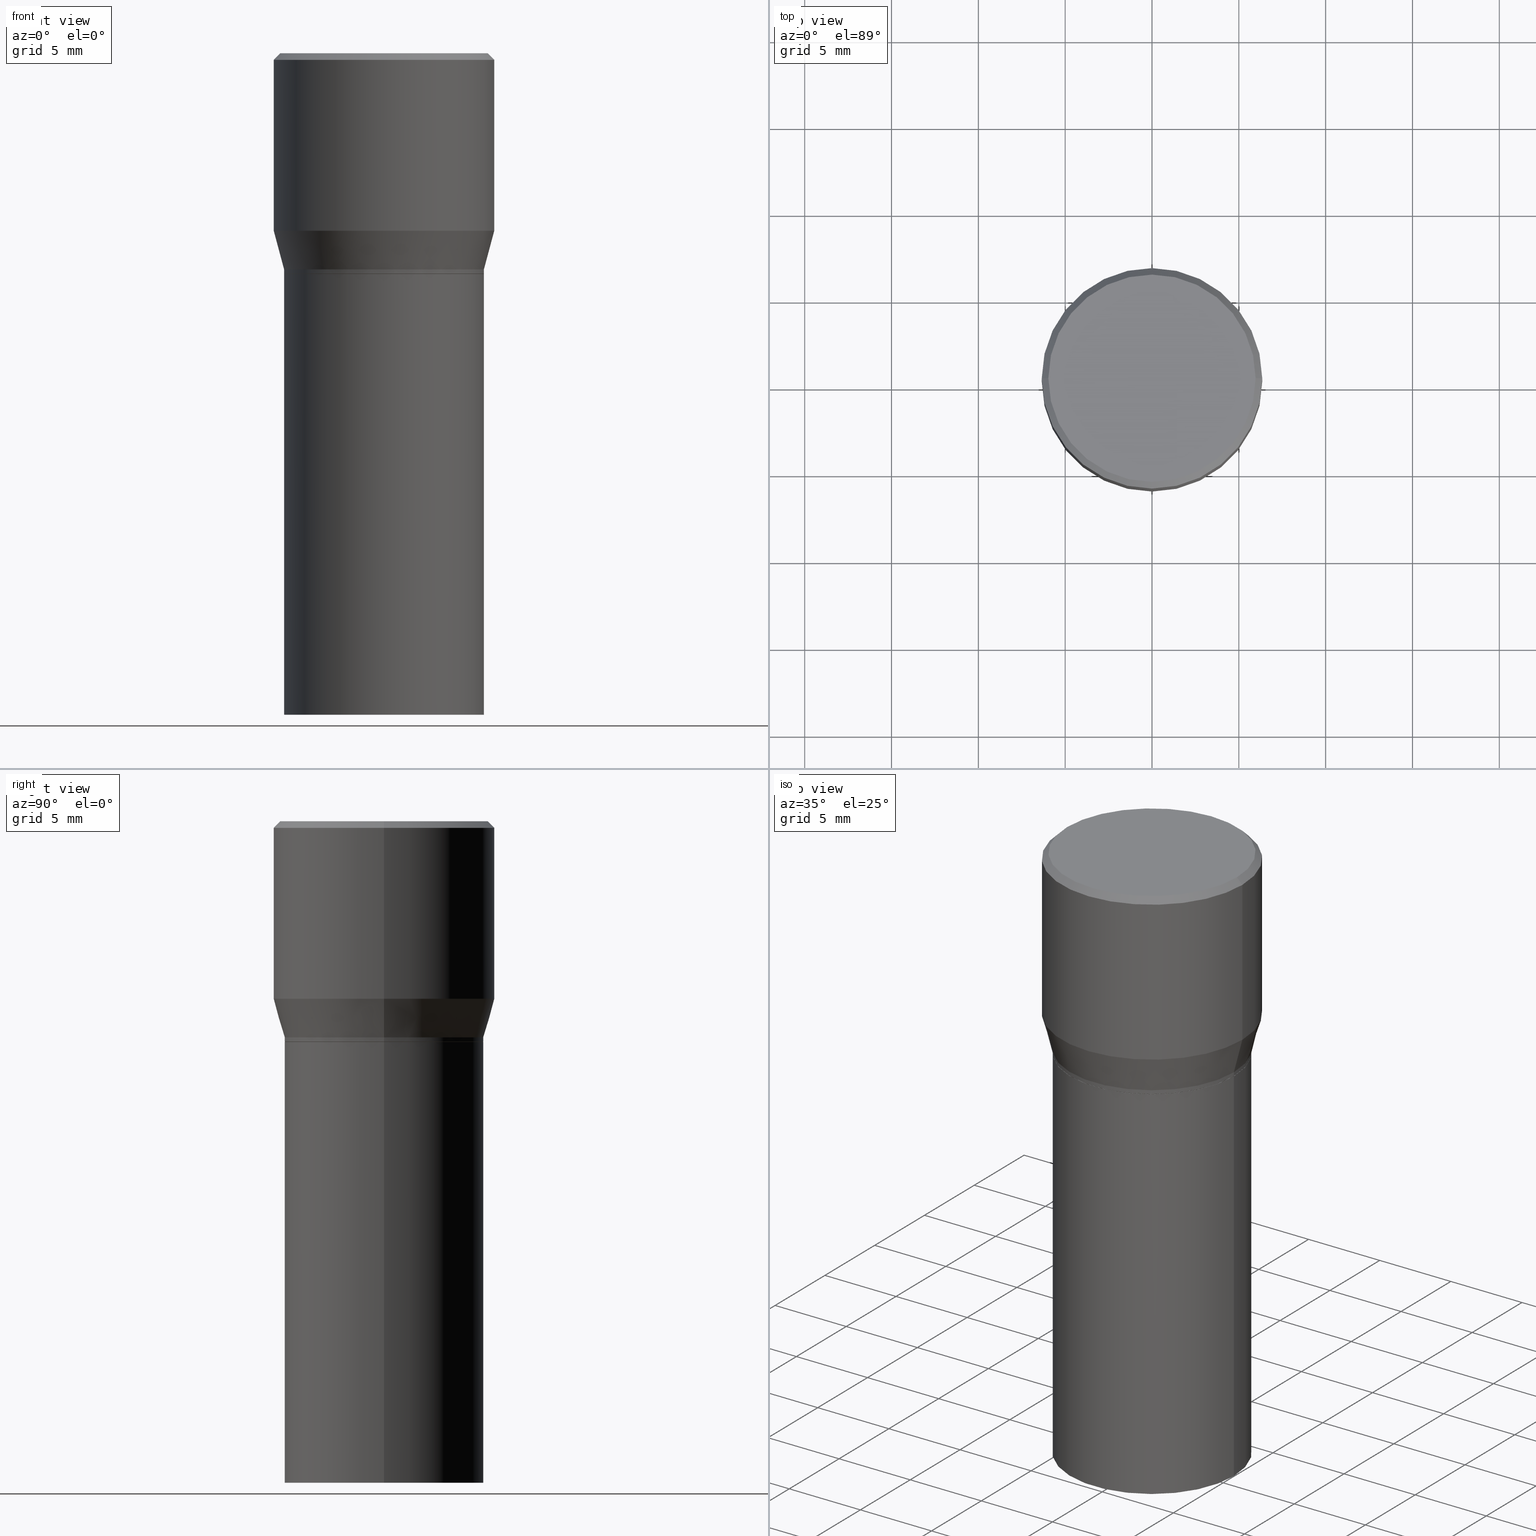
[diagram: canonical four-view strip — front | top / right | iso, engineering-drawing reading convention]
A machine part, canonical four-view strip (front | top / right | iso — engineering-drawing reading convention). The complete STEP part file that produces these views, byte-faithful:
ISO-10303-21;
HEADER;
FILE_DESCRIPTION (( 'STEP AP203' ),
    '1' );
FILE_NAME ('39357.STEP',
    '2024-03-12T19:00:09',
    ( '' ),
    ( '' ),
    'SwSTEP 2.0',
    'SolidWorks 2023',
    '' );
FILE_SCHEMA (( 'CONFIG_CONTROL_DESIGN' ));
ENDSEC;

DATA;
#1 = APPROVAL_STATUS ( 'not_yet_approved' ) ;
#2 = DIRECTION ( 'NONE',  ( 1.000000000000000000, -6.982962677686267499E-15, 0.000000000000000000 ) ) ;
#3 = PERSON_AND_ORGANIZATION ( #396, #66 ) ;
#4 = DIRECTION ( 'NONE',  ( 1.000000000000000000, -6.982962677686265922E-15, 0.000000000000000000 ) ) ;
#5 = DATE_AND_TIME ( #39, #33 ) ;
#6 = CARTESIAN_POINT ( 'NONE',  ( 0.2265499999999999736, -3.292816050662964671E-15, -0.4900000000000001021 ) ) ;
#7 = AXIS2_PLACEMENT_3D ( 'NONE', #284, #421, #102 ) ;
#8 = DIRECTION ( 'NONE',  ( -1.000000000000000000, 6.982962677686266711E-15, 0.000000000000000000 ) ) ;
#9 =( CONVERSION_BASED_UNIT ( 'INCH', #49 ) LENGTH_UNIT ( ) NAMED_UNIT ( #433 ) );
#10 = EDGE_CURVE ( 'NONE', #289, #258, #319, .T. ) ;
#11 = VECTOR ( 'NONE', #170, 39.37007874015747433 ) ;
#12 = CARTESIAN_POINT ( 'NONE',  ( -0.2260500000000000009, -1.395588152358667583E-16, -0.5000000000000001110 ) ) ;
#13 = DIRECTION ( 'NONE',  ( 1.000000000000000000, -6.982962677686267499E-15, 4.878549297894958458E-29 ) ) ;
#14 = DIRECTION ( 'NONE',  ( 1.000000000000000000, -6.982962677686266711E-15, 4.876176775795935793E-29 ) ) ;
#15 = CIRCLE ( 'NONE', #117, 0.2500000000000000000 ) ;
#16 = CIRCLE ( 'NONE', #440, 0.2500000000000000000 ) ;
#17 = VERTEX_POINT ( 'NONE', #249 ) ;
#18 = ORIENTED_EDGE ( 'NONE', *, *, #211, .T. ) ;
#19 = ORIENTED_EDGE ( 'NONE', *, *, #20, .F. ) ;
#20 = EDGE_CURVE ( 'NONE', #241, #196, #144, .T. ) ;
#21 = FACE_OUTER_BOUND ( 'NONE', #456, .T. ) ;
#22 = CARTESIAN_POINT ( 'NONE',  ( -0.2349999999999999867, 1.667182339297596256E-15, 1.568636843340762393E-16 ) ) ;
#23 = EDGE_CURVE ( 'NONE', #241, #252, #137, .T. ) ;
#24 = CIRCLE ( 'NONE', #287, 0.2265500000000000014 ) ;
#25 = PRODUCT_DEFINITION_FORMATION_WITH_SPECIFIED_SOURCE ( 'ANY', '', #232, .NOT_KNOWN. ) ;
#26 = ORIENTED_EDGE ( 'NONE', *, *, #89, .T. ) ;
#27 = DIRECTION ( 'NONE',  ( -2.445468806185136597E-29, 3.491481338843145583E-15, 1.000000000000000000 ) ) ;
#28 = ORIENTED_EDGE ( 'NONE', *, *, #76, .F. ) ;
#29 = PLANE ( 'NONE',  #139 ) ;
#30 = VERTEX_POINT ( 'NONE', #360 ) ;
#31 = DIRECTION ( 'NONE',  ( -2.445468806185136597E-29, 3.491481338843145583E-15, 1.000000000000000000 ) ) ;
#32 = AXIS2_PLACEMENT_3D ( 'NONE', #376, #304, #14 ) ;
#33 = LOCAL_TIME ( 15, 0, 9.000000000000000000, #181 ) ;
#34 = CARTESIAN_POINT ( 'NONE',  ( 9.842606206466859638E-30, -1.405263310189985589E-15, -0.4024834085625100810 ) ) ;
#35 = CARTESIAN_POINT ( 'NONE',  ( 3.668203209277704895E-29, -5.237222008264718177E-15, -1.500000000000000222 ) ) ;
#36 = ADVANCED_FACE ( 'NONE', ( #286 ), #337, .T. ) ;
#37 = CARTESIAN_POINT ( 'NONE',  ( -0.2500000000000000000, 1.693368449338919401E-15, -0.01499999999999999944 ) ) ;
#38 = AXIS2_PLACEMENT_3D ( 'NONE', #322, #57, #461 ) ;
#39 = CALENDAR_DATE ( 2024, 12, 3 ) ;
#40 = CARTESIAN_POINT ( 'NONE',  ( 0.2265500000000000014, -3.325985123381975211E-15, -0.4995000000000001661 ) ) ;
#41 = AXIS2_PLACEMENT_3D ( 'NONE', #167, #318, #8 ) ;
#42 = LINE ( 'NONE', #114, #307 ) ;
#43 = CARTESIAN_POINT ( 'NONE',  ( 9.842606206466859638E-30, -1.405263310189985589E-15, -0.4024834085625100810 ) ) ;
#44 = CIRCLE ( 'NONE', #38, 0.2265500000000000014 ) ;
#45 = DIRECTION ( 'NONE',  ( -2.438088387897960049E-29, 3.491481338843145188E-15, 1.000000000000000000 ) ) ;
#46 = EDGE_CURVE ( 'NONE', #30, #136, #16, .T. ) ;
#47 = CARTESIAN_POINT ( 'NONE',  ( 3.668203209277705088E-31, -5.237222008264718399E-17, -0.01499999999999999944 ) ) ;
#48 = ADVANCED_FACE ( 'NONE', ( #56 ), #302, .T. ) ;
#49 = LENGTH_MEASURE_WITH_UNIT ( LENGTH_MEASURE( 0.02539999999999999897 ), #82 );
#50 = VECTOR ( 'NONE', #347, 39.37007874015748143 ) ;
#51 = ORIENTED_EDGE ( 'NONE', *, *, #46, .T. ) ;
#52 = PERSON_AND_ORGANIZATION_ROLE ( 'classification_officer' ) ;
#53 = EDGE_LOOP ( 'NONE', ( #202, #350, #100, #93 ) ) ;
#54 = ORIENTED_EDGE ( 'NONE', *, *, #23, .F. ) ;
#55 = DATE_TIME_ROLE ( 'classification_date' ) ;
#56 = FACE_OUTER_BOUND ( 'NONE', #316, .T. ) ;
#57 = DIRECTION ( 'NONE',  ( -2.445468806185136597E-29, 3.491481338843145583E-15, 1.000000000000000000 ) ) ;
#58 = ADVANCED_FACE ( 'NONE', ( #21 ), #283, .T. ) ;
#59 = COORDINATED_UNIVERSAL_TIME_OFFSET ( 5, 0, .BEHIND. ) ;
#60 = VERTEX_POINT ( 'NONE', #22 ) ;
#61 = FACE_OUTER_BOUND ( 'NONE', #131, .T. ) ;
#62 = EDGE_LOOP ( 'NONE', ( #383, #160, #19, #68 ) ) ;
#63 = VECTOR ( 'NONE', #342, 39.37007874015748854 ) ;
#64 = EDGE_LOOP ( 'NONE', ( #349, #98 ) ) ;
#65 = CYLINDRICAL_SURFACE ( 'NONE', #254, 0.2500000000000000000 ) ;
#66 = ORGANIZATION ( 'UNSPECIFIED', 'UNSPECIFIED', '' ) ;
#67 = ADVANCED_FACE ( 'NONE', ( #278 ), #158, .T. ) ;
#68 = ORIENTED_EDGE ( 'NONE', *, *, #129, .F. ) ;
#69 = CARTESIAN_POINT ( 'NONE',  ( 3.668203209277705088E-31, -5.237222008264718399E-17, -0.01499999999999999944 ) ) ;
#70 = ADVANCED_FACE ( 'NONE', ( #61 ), #209, .T. ) ;
#71 = APPROVAL_DATE_TIME ( #434, #86 ) ;
#72 = EDGE_CURVE ( 'NONE', #196, #385, #324, .T. ) ;
#73 = PERSON_AND_ORGANIZATION ( #396, #66 ) ;
#74 = CARTESIAN_POINT ( 'NONE',  ( 0.2260500000000000009, -3.324239382712553708E-15, -0.5000000000000001110 ) ) ;
#75 = CARTESIAN_POINT ( 'NONE',  ( -0.2265500000000000014, 1.609734567864506981E-15, -1.114384744697248863E-29 ) ) ;
#76 = EDGE_CURVE ( 'NONE', #412, #313, #393, .T. ) ;
#77 = CARTESIAN_POINT ( 'NONE',  ( -0.2265499999999999736, 1.350011205208151600E-16, -0.4900000000000001021 ) ) ;
#78 = AXIS2_PLACEMENT_3D ( 'NONE', #161, #373, #90 ) ;
#79 = CARTESIAN_POINT ( 'NONE',  ( 1.221511668689476057E-29, -1.743994928752151682E-15, -0.4995000000000001661 ) ) ;
#80 = AXIS2_PLACEMENT_3D ( 'NONE', #94, #242, #255 ) ;
#81 = DIRECTION ( 'NONE',  ( -2.445468806185136597E-29, 3.491481338843145583E-15, 1.000000000000000000 ) ) ;
#82 =( LENGTH_UNIT ( ) NAMED_UNIT ( * ) SI_UNIT ( $, .METRE. ) );
#83 = DIRECTION ( 'NONE',  ( -2.445468806185136597E-29, 3.491481338843145583E-15, 1.000000000000000000 ) ) ;
#84 = AXIS2_PLACEMENT_3D ( 'NONE', #88, #272, #235 ) ;
#85 = CC_DESIGN_SECURITY_CLASSIFICATION ( #429, ( #25 ) ) ;
#86 = APPROVAL ( #1, 'UNSPECIFIED' ) ;
#87 = EDGE_CURVE ( 'NONE', #313, #412, #193, .T. ) ;
#88 = CARTESIAN_POINT ( 'NONE',  ( 1.198279715030717173E-29, -1.710825856033141537E-15, -0.4900000000000001021 ) ) ;
#89 = EDGE_CURVE ( 'NONE', #285, #128, #44, .T. ) ;
#90 = DIRECTION ( 'NONE',  ( 1.000000000000000000, -6.982962677686267499E-15, 4.878549297894958458E-29 ) ) ;
#91 = ORIENTED_EDGE ( 'NONE', *, *, #238, .F. ) ;
#92 = FACE_OUTER_BOUND ( 'NONE', #162, .T. ) ;
#93 = ORIENTED_EDGE ( 'NONE', *, *, #267, .F. ) ;
#94 = CARTESIAN_POINT ( 'NONE',  ( 1.198279715030717173E-29, -1.710825856033141537E-15, -0.4900000000000001021 ) ) ;
#95 = FACE_OUTER_BOUND ( 'NONE', #418, .T. ) ;
#96 = MANIFOLD_SOLID_BREP ( 'Body-Move/Copy2[2]', #355 ) ;
#97 = APPLICATION_PROTOCOL_DEFINITION ( 'international standard', 'config_control_design', 1994, #466 ) ;
#98 = ORIENTED_EDGE ( 'NONE', *, *, #264, .F. ) ;
#99 = ORIENTED_EDGE ( 'NONE', *, *, #191, .T. ) ;
#100 = ORIENTED_EDGE ( 'NONE', *, *, #23, .T. ) ;
#101 = CARTESIAN_POINT ( 'NONE',  ( 1.222734403092568719E-29, -1.745740669421573186E-15, -0.5000000000000001110 ) ) ;
#102 = DIRECTION ( 'NONE',  ( 1.000000000000000000, 0.000000000000000000, 0.000000000000000000 ) ) ;
#103 = ORIENTED_EDGE ( 'NONE', *, *, #240, .F. ) ;
#104 = CONICAL_SURFACE ( 'NONE', #310, 0.2500000000000000000, 0.7853981633974435050 ) ;
#105 = AXIS2_PLACEMENT_3D ( 'NONE', #132, #465, #420 ) ;
#106 = CARTESIAN_POINT ( 'NONE',  ( 1.198279715030717173E-29, -1.710825856033141537E-15, -0.4900000000000001021 ) ) ;
#107 = DIRECTION ( 'NONE',  ( -2.445468806185136877E-29, 3.491481338843145188E-15, 1.000000000000000000 ) ) ;
#108 = CIRCLE ( 'NONE', #159, 0.2265499999999999736 ) ;
#109 = EDGE_LOOP ( 'NONE', ( #244, #452, #18, #458 ) ) ;
#110 = DIRECTION ( 'NONE',  ( 1.000000000000000000, -6.982962677686265922E-15, 4.876176775795935793E-29 ) ) ;
#111 = CC_DESIGN_PERSON_AND_ORGANIZATION_ASSIGNMENT ( #414, #52, ( #429 ) ) ;
#113 = ADVANCED_FACE ( 'NONE', ( #165 ), #29, .F. ) ;
#112 = CC_DESIGN_APPROVAL ( #245, ( #25 ) ) ;
#114 = CARTESIAN_POINT ( 'NONE',  ( 0.2500000000000000000, -1.745740669421566678E-15, 1.219044193948983948E-29 ) ) ;
#115 = CARTESIAN_POINT ( 'NONE',  ( 0.2265500000000000014, -3.327730864051397109E-15, -0.5000000000000001110 ) ) ;
#116 = FACE_OUTER_BOUND ( 'NONE', #391, .T. ) ;
#117 = AXIS2_PLACEMENT_3D ( 'NONE', #47, #275, #312 ) ;
#118 = CARTESIAN_POINT ( 'NONE',  ( 0.2265500000000000014, -1.581990194629823726E-15, 1.104697848556569281E-29 ) ) ;
#119 = VECTOR ( 'NONE', #218, 39.37007874015747433 ) ;
#120 = DIRECTION ( 'NONE',  ( 1.000000000000000000, -6.982962677686265922E-15, 0.000000000000000000 ) ) ;
#121 = CARTESIAN_POINT ( 'NONE',  ( -0.2500000000000000000, 3.710935292102651716E-16, -0.4024834085625100810 ) ) ;
#122 = CC_DESIGN_DATE_AND_TIME_ASSIGNMENT ( #201, #55, ( #429 ) ) ;
#123 = ADVANCED_BREP_SHAPE_REPRESENTATION ( '39357', ( #402, #96, #7 ), #441 ) ;
#124 = CARTESIAN_POINT ( 'NONE',  ( -0.2500000000000000000, 1.776356839400250465E-15, -1.229733772563726445E-29 ) ) ;
#125 = CIRCLE ( 'NONE', #294, 0.2265500000000000014 ) ;
#126 = APPROVAL_PERSON_ORGANIZATION ( #219, #86, #365 ) ;
#127 = PLANE ( 'NONE',  #180 ) ;
#128 = VERTEX_POINT ( 'NONE', #175 ) ;
#129 = EDGE_CURVE ( 'NONE', #173, #241, #256, .T. ) ;
#130 = ORIENTED_EDGE ( 'NONE', *, *, #406, .F. ) ;
#131 = EDGE_LOOP ( 'NONE', ( #164, #450, #389, #200 ) ) ;
#132 = CARTESIAN_POINT ( 'NONE',  ( 1.222734403092568719E-29, -1.745740669421573186E-15, -0.5000000000000001110 ) ) ;
#133 = ORIENTED_EDGE ( 'NONE', *, *, #217, .T. ) ;
#134 = COORDINATED_UNIVERSAL_TIME_OFFSET ( 5, 0, .BEHIND. ) ;
#135 = CARTESIAN_POINT ( 'NONE',  ( 1.222734403092568719E-29, -1.745740669421573186E-15, -0.5000000000000001110 ) ) ;
#136 = VERTEX_POINT ( 'NONE', #138 ) ;
#137 = LINE ( 'NONE', #321, #119 ) ;
#138 = CARTESIAN_POINT ( 'NONE',  ( 0.2500000000000000000, -1.798112889504214151E-15, -0.01499999999999999944 ) ) ;
#139 = AXIS2_PLACEMENT_3D ( 'NONE', #247, #358, #205 ) ;
#140 = EDGE_LOOP ( 'NONE', ( #28, #381 ) ) ;
#141 = DIRECTION ( 'NONE',  ( -2.445468806185136597E-29, 3.491481338843145583E-15, 1.000000000000000000 ) ) ;
#142 = FACE_OUTER_BOUND ( 'NONE', #140, .T. ) ;
#143 = DIRECTION ( 'NONE',  ( -1.000000000000000000, 6.982962677686266711E-15, 0.000000000000000000 ) ) ;
#144 = CIRCLE ( 'NONE', #259, 0.2265499999999999736 ) ;
#145 = CALENDAR_DATE ( 2024, 12, 3 ) ;
#146 = CARTESIAN_POINT ( 'NONE',  ( 3.668203209277705088E-31, -5.237222008264718399E-17, -0.01499999999999999944 ) ) ;
#147 = PLANE ( 'NONE',  #210 ) ;
#148 = ADVANCED_FACE ( 'NONE', ( #92 ), #65, .T. ) ;
#149 = CYLINDRICAL_SURFACE ( 'NONE', #198, 0.2265500000000000014 ) ;
#150 = ADVANCED_FACE ( 'NONE', ( #95 ), #186, .T. ) ;
#151 = VECTOR ( 'NONE', #107, 39.37007874015748143 ) ;
#152 = PRODUCT_DEFINITION_SHAPE ( 'NONE', 'NONE',  #326 ) ;
#153 = DIRECTION ( 'NONE',  ( -2.445468806185136597E-29, 3.491481338843145583E-15, 1.000000000000000000 ) ) ;
#154 = ADVANCED_FACE ( 'NONE', ( #190 ), #147, .F. ) ;
#155 = CARTESIAN_POINT ( 'NONE',  ( 0.000000000000000000, 0.000000000000000000, 0.000000000000000000 ) ) ;
#156 = DIRECTION ( 'NONE',  ( -2.445468806185136877E-29, 3.491481338843145188E-15, 1.000000000000000000 ) ) ;
#157 = CIRCLE ( 'NONE', #268, 0.2500000000000000000 ) ;
#158 = CONICAL_SURFACE ( 'NONE', #288, 0.2260500000000000009, 0.7853981633974824739 ) ;
#159 = AXIS2_PLACEMENT_3D ( 'NONE', #439, #153, #120 ) ;
#160 = ORIENTED_EDGE ( 'NONE', *, *, #372, .T. ) ;
#161 = CARTESIAN_POINT ( 'NONE',  ( -3.836052468622837406E-45, 5.476866265946494270E-31, 1.568636843340877764E-16 ) ) ;
#162 = EDGE_LOOP ( 'NONE', ( #213, #409, #279, #277 ) ) ;
#163 = APPROVAL_ROLE ( '' ) ;
#164 = ORIENTED_EDGE ( 'NONE', *, *, #372, .F. ) ;
#165 = FACE_OUTER_BOUND ( 'NONE', #325, .T. ) ;
#166 = DIRECTION ( 'NONE',  ( -2.445468806185136597E-29, 3.491481338843145583E-15, 1.000000000000000000 ) ) ;
#167 = CARTESIAN_POINT ( 'NONE',  ( 3.668203209277705088E-31, -5.237222008264718399E-17, -0.01499999999999999944 ) ) ;
#168 = APPROVAL_PERSON_ORGANIZATION ( #362, #245, #332 ) ;
#169 = DIRECTION ( 'NONE',  ( 1.000000000000000000, -6.982962677686265922E-15, 0.000000000000000000 ) ) ;
#170 = DIRECTION ( 'NONE',  ( -0.2588190451025214611, 5.211531920934551042E-15, 0.9659258262890682012 ) ) ;
#171 = CC_DESIGN_PERSON_AND_ORGANIZATION_ASSIGNMENT ( #262, #225, ( #25 ) ) ;
#172 = DESIGN_CONTEXT ( 'detailed design', #403, 'design' ) ;
#173 = VERTEX_POINT ( 'NONE', #40 ) ;
#174 = DIRECTION ( 'NONE',  ( -2.445468806185136597E-29, 3.491481338843145583E-15, 1.000000000000000000 ) ) ;
#175 = CARTESIAN_POINT ( 'NONE',  ( -0.2265500000000000014, -1.881746770978639193E-15, -0.5000000000000001110 ) ) ;
#176 = EDGE_LOOP ( 'NONE', ( #216, #357 ) ) ;
#177 = ADVANCED_FACE ( 'NONE', ( #116 ), #104, .T. ) ;
#178 = SECURITY_CLASSIFICATION_LEVEL ( 'unclassified' ) ;
#179 = ORIENTED_EDGE ( 'NONE', *, *, #407, .F. ) ;
#180 = AXIS2_PLACEMENT_3D ( 'NONE', #341, #45, #442 ) ;
#181 = COORDINATED_UNIVERSAL_TIME_OFFSET ( 5, 0, .BEHIND. ) ;
#182 = CARTESIAN_POINT ( 'NONE',  ( -0.2265500000000000014, -1.881746770978639193E-15, -1.500000000000000222 ) ) ;
#183 = CARTESIAN_POINT ( 'NONE',  ( 0.2265500000000000014, -6.819212202894542298E-15, -1.500000000000000222 ) ) ;
#184 = COORDINATED_UNIVERSAL_TIME_OFFSET ( 5, 0, .BEHIND. ) ;
#185 = DIRECTION ( 'NONE',  ( -0.7071067811865441310, 2.468850131082221167E-15, -0.7071067811865509034 ) ) ;
#186 = CONICAL_SURFACE ( 'NONE', #41, 0.2500000000000000000, 0.7853981633974435050 ) ;
#187 = CC_DESIGN_APPROVAL ( #86, ( #326 ) ) ;
#188 = DATE_TIME_ROLE ( 'creation_date' ) ;
#189 = LINE ( 'NONE', #74, #273 ) ;
#190 = FACE_OUTER_BOUND ( 'NONE', #176, .T. ) ;
#191 = EDGE_CURVE ( 'NONE', #17, #136, #428, .T. ) ;
#192 = CARTESIAN_POINT ( 'NONE',  ( 0.2260500000000000009, -3.324239382712553708E-15, -0.5000000000000001110 ) ) ;
#193 = CIRCLE ( 'NONE', #454, 0.2260500000000000009 ) ;
#194 = DIRECTION ( 'NONE',  ( -2.445468806185136597E-29, 3.491481338843145583E-15, 1.000000000000000000 ) ) ;
#195 = DIRECTION ( 'NONE',  ( 1.000000000000000000, -6.982962677686265922E-15, 0.000000000000000000 ) ) ;
#196 = VERTEX_POINT ( 'NONE', #77 ) ;
#197 = CARTESIAN_POINT ( 'NONE',  ( 1.221511668689476057E-29, -1.743994928752151682E-15, -0.4995000000000001661 ) ) ;
#198 = AXIS2_PLACEMENT_3D ( 'NONE', #435, #81, #369 ) ;
#199 = EDGE_CURVE ( 'NONE', #460, #173, #338, .T. ) ;
#200 = ORIENTED_EDGE ( 'NONE', *, *, #361, .F. ) ;
#201 = DATE_AND_TIME ( #351, #329 ) ;
#202 = ORIENTED_EDGE ( 'NONE', *, *, #72, .F. ) ;
#203 = ORIENTED_EDGE ( 'NONE', *, *, #330, .F. ) ;
#204 = DIRECTION ( 'NONE',  ( -2.445468806185136597E-29, 3.491481338843145583E-15, 1.000000000000000000 ) ) ;
#205 = DIRECTION ( 'NONE',  ( -1.000000000000000000, 6.982962677686265922E-15, -4.876176775795935793E-29 ) ) ;
#206 = ORIENTED_EDGE ( 'NONE', *, *, #298, .T. ) ;
#207 = APPROVAL_STATUS ( 'not_yet_approved' ) ;
#208 = ORIENTED_EDGE ( 'NONE', *, *, #267, .T. ) ;
#209 = CYLINDRICAL_SURFACE ( 'NONE', #221, 0.2265500000000000014 ) ;
#210 = AXIS2_PLACEMENT_3D ( 'NONE', #432, #331, #401 ) ;
#211 = EDGE_CURVE ( 'NONE', #412, #173, #189, .T. ) ;
#212 = CALENDAR_DATE ( 2024, 12, 3 ) ;
#213 = ORIENTED_EDGE ( 'NONE', *, *, #330, .T. ) ;
#214 = CARTESIAN_POINT ( 'NONE',  ( 0.000000000000000000, 0.000000000000000000, 0.000000000000000000 ) ) ;
#215 = MECHANICAL_CONTEXT ( 'NONE', #466, 'mechanical' ) ;
#216 = ORIENTED_EDGE ( 'NONE', *, *, #377, .T. ) ;
#217 = EDGE_CURVE ( 'NONE', #128, #285, #24, .T. ) ;
#218 = DIRECTION ( 'NONE',  ( 0.2588190451025214611, 1.565188264969621573E-15, 0.9659258262890682012 ) ) ;
#219 = PERSON_AND_ORGANIZATION ( #396, #66 ) ;
#220 = CIRCLE ( 'NONE', #422, 0.2349999999999999867 ) ;
#221 = AXIS2_PLACEMENT_3D ( 'NONE', #314, #27, #384 ) ;
#222 = DIRECTION ( 'NONE',  ( -2.438088387897960049E-29, 3.491481338843145188E-15, 1.000000000000000000 ) ) ;
#223 = DIRECTION ( 'NONE',  ( 0.7071067811865715536, -2.468850131082509496E-15, 0.7071067811865232589 ) ) ;
#224 = PRODUCT_RELATED_PRODUCT_CATEGORY ( 'detail', '', ( #232 ) ) ;
#225 = PERSON_AND_ORGANIZATION_ROLE ( 'design_supplier' ) ;
#226 = EDGE_CURVE ( 'NONE', #252, #136, #42, .T. ) ;
#227 = LINE ( 'NONE', #12, #63 ) ;
#228 = CIRCLE ( 'NONE', #78, 0.2349999999999999867 ) ;
#229 = DIRECTION ( 'NONE',  ( 1.000000000000000000, -6.982962677686265922E-15, 0.000000000000000000 ) ) ;
#230 =( NAMED_UNIT ( * ) PLANE_ANGLE_UNIT ( ) SI_UNIT ( $, .RADIAN. ) );
#231 = ADVANCED_FACE ( 'NONE', ( #339 ), #149, .T. ) ;
#232 = PRODUCT ( '39357', '39357', '', ( #215 ) ) ;
#233 = AXIS2_PLACEMENT_3D ( 'NONE', #155, #437, #305 ) ;
#234 = CARTESIAN_POINT ( 'NONE',  ( -0.2260500000000000009, -1.369095880617559516E-16, -0.5000000000000001110 ) ) ;
#235 = DIRECTION ( 'NONE',  ( 1.000000000000000000, -6.982962677686265922E-15, 0.000000000000000000 ) ) ;
#236 = CYLINDRICAL_SURFACE ( 'NONE', #32, 0.2265500000000000014 ) ;
#237 = APPROVAL ( #207, 'UNSPECIFIED' ) ;
#238 = EDGE_CURVE ( 'NONE', #289, #285, #395, .T. ) ;
#239 = DIRECTION ( 'NONE',  ( -2.445468806185136597E-29, 3.491481338843145583E-15, 1.000000000000000000 ) ) ;
#240 = EDGE_CURVE ( 'NONE', #60, #30, #366, .T. ) ;
#241 = VERTEX_POINT ( 'NONE', #6 ) ;
#242 = DIRECTION ( 'NONE',  ( -2.445468806185136597E-29, 3.491481338843145583E-15, 1.000000000000000000 ) ) ;
#243 = CARTESIAN_POINT ( 'NONE',  ( 1.222734403092568719E-29, -1.745740669421573186E-15, -0.5000000000000001110 ) ) ;
#244 = ORIENTED_EDGE ( 'NONE', *, *, #298, .F. ) ;
#245 = APPROVAL ( #368, 'UNSPECIFIED' ) ;
#246 = ORIENTED_EDGE ( 'NONE', *, *, #46, .F. ) ;
#247 = CARTESIAN_POINT ( 'NONE',  ( 1.581990194629835559E-15, 0.2265499999999982528, -0.5000000000000009992 ) ) ;
#248 = EDGE_LOOP ( 'NONE', ( #353, #424, #415, #317 ) ) ;
#249 = CARTESIAN_POINT ( 'NONE',  ( 0.2349999999999999867, -1.689856874500919833E-15, 1.568636843340994368E-16 ) ) ;
#250 = CARTESIAN_POINT ( 'NONE',  ( 0.2265500000000000014, -1.581990194629823726E-15, 1.104697848556569281E-29 ) ) ;
#251 = AXIS2_PLACEMENT_3D ( 'NONE', #79, #260, #229 ) ;
#252 = VERTEX_POINT ( 'NONE', #269 ) ;
#253 = AXIS2_PLACEMENT_3D ( 'NONE', #135, #204, #352 ) ;
#254 = AXIS2_PLACEMENT_3D ( 'NONE', #214, #239, #449 ) ;
#255 = DIRECTION ( 'NONE',  ( 1.000000000000000000, -6.982962677686265922E-15, 0.000000000000000000 ) ) ;
#256 = LINE ( 'NONE', #250, #151 ) ;
#257 = PERSON_AND_ORGANIZATION_ROLE ( 'design_owner' ) ;
#258 = VERTEX_POINT ( 'NONE', #182 ) ;
#259 = AXIS2_PLACEMENT_3D ( 'NONE', #106, #166, #169 ) ;
#260 = DIRECTION ( 'NONE',  ( -2.445468806185136597E-29, 3.491481338843145583E-15, 1.000000000000000000 ) ) ;
#261 = CC_DESIGN_DATE_AND_TIME_ASSIGNMENT ( #265, #188, ( #326 ) ) ;
#262 = PERSON_AND_ORGANIZATION ( #396, #66 ) ;
#263 = CARTESIAN_POINT ( 'NONE',  ( 1.222734403092568719E-29, -1.745740669421573186E-15, -0.5000000000000001110 ) ) ;
#264 = EDGE_CURVE ( 'NONE', #258, #289, #426, .T. ) ;
#265 = DATE_AND_TIME ( #334, #371 ) ;
#266 = CARTESIAN_POINT ( 'NONE',  ( 0.2500000000000000000, -1.767496719525530167E-15, -0.01499999999999999944 ) ) ;
#267 = EDGE_CURVE ( 'NONE', #385, #252, #463, .T. ) ;
#268 = AXIS2_PLACEMENT_3D ( 'NONE', #43, #83, #195 ) ;
#269 = CARTESIAN_POINT ( 'NONE',  ( 0.2500000000000000000, -3.151003979611552069E-15, -0.4024834085625100810 ) ) ;
#270 = ADVANCED_FACE ( 'NONE', ( #142 ), #291, .F. ) ;
#271 = DIRECTION ( 'NONE',  ( 1.000000000000000000, -6.982962677686265922E-15, 0.000000000000000000 ) ) ;
#272 = DIRECTION ( 'NONE',  ( -2.445468806185136597E-29, 3.491481338843145583E-15, 1.000000000000000000 ) ) ;
#273 = VECTOR ( 'NONE', #223, 39.37007874015748854 ) ;
#274 = FACE_OUTER_BOUND ( 'NONE', #64, .T. ) ;
#275 = DIRECTION ( 'NONE',  ( -2.445468806185136597E-29, 3.491481338843145583E-15, 1.000000000000000000 ) ) ;
#276 = ORIENTED_EDGE ( 'NONE', *, *, #315, .T. ) ;
#277 = ORIENTED_EDGE ( 'NONE', *, *, #226, .F. ) ;
#278 = FACE_OUTER_BOUND ( 'NONE', #109, .T. ) ;
#279 = ORIENTED_EDGE ( 'NONE', *, *, #315, .F. ) ;
#280 = ORIENTED_EDGE ( 'NONE', *, *, #211, .F. ) ;
#281 = DIRECTION ( 'NONE',  ( -2.445468806185136597E-29, 3.491481338843145583E-15, 1.000000000000000000 ) ) ;
#282 = ORIENTED_EDGE ( 'NONE', *, *, #448, .F. ) ;
#283 = CYLINDRICAL_SURFACE ( 'NONE', #348, 0.2500000000000000000 ) ;
#284 = CARTESIAN_POINT ( 'NONE',  ( 0.000000000000000000, 0.000000000000000000, 0.000000000000000000 ) ) ;
#285 = VERTEX_POINT ( 'NONE', #115 ) ;
#286 = FACE_OUTER_BOUND ( 'NONE', #53, .T. ) ;
#287 = AXIS2_PLACEMENT_3D ( 'NONE', #263, #431, #299 ) ;
#288 = AXIS2_PLACEMENT_3D ( 'NONE', #101, #281, #453 ) ;
#289 = VERTEX_POINT ( 'NONE', #183 ) ;
#290 = EDGE_CURVE ( 'NONE', #258, #128, #333, .T. ) ;
#291 = PLANE ( 'NONE',  #346 ) ;
#292 = PERSON_AND_ORGANIZATION_ROLE ( 'creator' ) ;
#293 = DIRECTION ( 'NONE',  ( -2.445468806185136877E-29, 3.491481338843145188E-15, 1.000000000000000000 ) ) ;
#294 = AXIS2_PLACEMENT_3D ( 'NONE', #197, #408, #271 ) ;
#295 = LOCAL_TIME ( 15, 0, 9.000000000000000000, #134 ) ;
#296 = APPROVAL_DATE_TIME ( #5, #245 ) ;
#297 = CARTESIAN_POINT ( 'NONE',  ( 1.222734403092568719E-29, -1.745740669421573186E-15, -0.5000000000000001110 ) ) ;
#298 = EDGE_CURVE ( 'NONE', #313, #460, #227, .T. ) ;
#299 = DIRECTION ( 'NONE',  ( 1.000000000000000000, -6.982962677686266711E-15, 0.000000000000000000 ) ) ;
#300 = CONICAL_SURFACE ( 'NONE', #84, 0.2265499999999999736, 0.2617993877991501295 ) ;
#301 = ADVANCED_FACE ( 'NONE', ( #274 ), #127, .F. ) ;
#302 = CONICAL_SURFACE ( 'NONE', #253, 0.2260500000000000009, 0.7853981633974824739 ) ;
#303 = LINE ( 'NONE', #124, #336 ) ;
#304 = DIRECTION ( 'NONE',  ( -2.445468806185136597E-29, 3.491481338843145583E-15, 1.000000000000000000 ) ) ;
#305 = DIRECTION ( 'NONE',  ( 1.000000000000000000, -6.982962677686266711E-15, 4.876176775795935793E-29 ) ) ;
#306 = CC_DESIGN_PERSON_AND_ORGANIZATION_ASSIGNMENT ( #73, #292, ( #326 ) ) ;
#307 = VECTOR ( 'NONE', #340, 39.37007874015748143 ) ;
#308 = CARTESIAN_POINT ( 'NONE',  ( -0.2265500000000000014, -1.342603608876448985E-16, -0.4995000000000001661 ) ) ;
#309 = CLOSED_SHELL ( 'NONE', ( #392, #301, #459, #113 ) ) ;
#310 = AXIS2_PLACEMENT_3D ( 'NONE', #146, #367, #143 ) ;
#311 = ORIENTED_EDGE ( 'NONE', *, *, #226, .T. ) ;
#312 = DIRECTION ( 'NONE',  ( 1.000000000000000000, -6.982962677686266711E-15, 0.000000000000000000 ) ) ;
#313 = VERTEX_POINT ( 'NONE', #234 ) ;
#314 = CARTESIAN_POINT ( 'NONE',  ( 0.000000000000000000, 0.000000000000000000, 0.000000000000000000 ) ) ;
#315 = EDGE_CURVE ( 'NONE', #136, #30, #15, .T. ) ;
#316 = EDGE_LOOP ( 'NONE', ( #379, #206, #282, #280 ) ) ;
#317 = ORIENTED_EDGE ( 'NONE', *, *, #217, .F. ) ;
#318 = DIRECTION ( 'NONE',  ( 2.445468806185136597E-29, -3.491481338843145583E-15, -1.000000000000000000 ) ) ;
#319 = CIRCLE ( 'NONE', #425, 0.2265500000000000014 ) ;
#320 = ORIENTED_EDGE ( 'NONE', *, *, #20, .T. ) ;
#321 = CARTESIAN_POINT ( 'NONE',  ( 0.2265499999999999736, -3.292816050662964671E-15, -0.4900000000000001021 ) ) ;
#322 = CARTESIAN_POINT ( 'NONE',  ( 1.222734403092568719E-29, -1.745740669421573186E-15, -0.5000000000000001110 ) ) ;
#323 = ORIENTED_EDGE ( 'NONE', *, *, #191, .F. ) ;
#324 = LINE ( 'NONE', #328, #11 ) ;
#325 = EDGE_LOOP ( 'NONE', ( #26, #133 ) ) ;
#326 = PRODUCT_DEFINITION ( 'UNKNOWN', '', #25, #172 ) ;
#327 = DIRECTION ( 'NONE',  ( 1.000000000000000000, -6.982962677686267499E-15, 0.000000000000000000 ) ) ;
#328 = CARTESIAN_POINT ( 'NONE',  ( -0.2265499999999999736, -1.010912881686348269E-16, -0.4900000000000001021 ) ) ;
#329 = LOCAL_TIME ( 15, 0, 9.000000000000000000, #59 ) ;
#330 = EDGE_CURVE ( 'NONE', #252, #385, #157, .T. ) ;
#331 = DIRECTION ( 'NONE',  ( 2.438088387897960049E-29, -3.491481338843145188E-15, -1.000000000000000000 ) ) ;
#332 = APPROVAL_ROLE ( '' ) ;
#333 = LINE ( 'NONE', #75, #436 ) ;
#334 = CALENDAR_DATE ( 2024, 12, 3 ) ;
#335 = DIRECTION ( 'NONE',  ( -2.445468806185136877E-29, 3.491481338843145188E-15, 1.000000000000000000 ) ) ;
#336 = VECTOR ( 'NONE', #156, 39.37007874015748143 ) ;
#337 = CONICAL_SURFACE ( 'NONE', #80, 0.2265499999999999736, 0.2617993877991501295 ) ;
#338 = CIRCLE ( 'NONE', #251, 0.2265500000000000014 ) ;
#339 = FACE_OUTER_BOUND ( 'NONE', #62, .T. ) ;
#340 = DIRECTION ( 'NONE',  ( -2.445468806185136877E-29, 3.491481338843145188E-15, 1.000000000000000000 ) ) ;
#341 = CARTESIAN_POINT ( 'NONE',  ( 3.576687321579069994E-29, -5.368277968210015545E-15, -1.500000000000000222 ) ) ;
#342 = DIRECTION ( 'NONE',  ( -0.7071067811865715536, 7.493145998870439357E-15, 0.7071067811865232589 ) ) ;
#343 = CC_DESIGN_PERSON_AND_ORGANIZATION_ASSIGNMENT ( #462, #257, ( #232 ) ) ;
#344 = FACE_OUTER_BOUND ( 'NONE', #443, .T. ) ;
#345 = ORIENTED_EDGE ( 'NONE', *, *, #377, .F. ) ;
#346 = AXIS2_PLACEMENT_3D ( 'NONE', #297, #222, #110 ) ;
#347 = DIRECTION ( 'NONE',  ( -2.445468806185136877E-29, 3.491481338843145188E-15, 1.000000000000000000 ) ) ;
#348 = AXIS2_PLACEMENT_3D ( 'NONE', #419, #444, #410 ) ;
#349 = ORIENTED_EDGE ( 'NONE', *, *, #10, .F. ) ;
#350 = ORIENTED_EDGE ( 'NONE', *, *, #361, .T. ) ;
#351 = CALENDAR_DATE ( 2024, 12, 3 ) ;
#352 = DIRECTION ( 'NONE',  ( 1.000000000000000000, -6.982962677686266711E-15, 0.000000000000000000 ) ) ;
#353 = ORIENTED_EDGE ( 'NONE', *, *, #290, .F. ) ;
#354 = ORIENTED_EDGE ( 'NONE', *, *, #290, .T. ) ;
#355 = CLOSED_SHELL ( 'NONE', ( #231, #48, #150, #148, #455, #36, #58, #177, #154, #270, #67, #70 ) ) ;
#356 = DATE_AND_TIME ( #212, #295 ) ;
#357 = ORIENTED_EDGE ( 'NONE', *, *, #407, .T. ) ;
#358 = DIRECTION ( 'NONE',  ( 2.438088387897960049E-29, -3.491481338843145188E-15, -1.000000000000000000 ) ) ;
#359 = ORIENTED_EDGE ( 'NONE', *, *, #240, .T. ) ;
#360 = CARTESIAN_POINT ( 'NONE',  ( -0.2500000000000000000, 1.047539074263934229E-15, -0.01499999999999999944 ) ) ;
#361 = EDGE_CURVE ( 'NONE', #196, #241, #108, .T. ) ;
#362 = PERSON_AND_ORGANIZATION ( #396, #66 ) ;
#363 = DIRECTION ( 'NONE',  ( -2.445468806185136597E-29, 3.491481338843145583E-15, 1.000000000000000000 ) ) ;
#364 = VECTOR ( 'NONE', #399, 39.37007874015748143 ) ;
#365 = APPROVAL_ROLE ( '' ) ;
#366 = LINE ( 'NONE', #37, #386 ) ;
#367 = DIRECTION ( 'NONE',  ( 2.445468806185136597E-29, -3.491481338843145583E-15, -1.000000000000000000 ) ) ;
#368 = APPROVAL_STATUS ( 'not_yet_approved' ) ;
#369 = DIRECTION ( 'NONE',  ( 1.000000000000000000, -6.982962677686266711E-15, 4.876176775795935793E-29 ) ) ;
#370 = CC_DESIGN_APPROVAL ( #237, ( #429 ) ) ;
#371 = LOCAL_TIME ( 15, 0, 9.000000000000000000, #394 ) ;
#372 = EDGE_CURVE ( 'NONE', #460, #196, #438, .T. ) ;
#373 = DIRECTION ( 'NONE',  ( -2.445468806185136597E-29, 3.491481338843145583E-15, 1.000000000000000000 ) ) ;
#374 =( NAMED_UNIT ( * ) SI_UNIT ( $, .STERADIAN. ) SOLID_ANGLE_UNIT ( ) );
#375 = CYLINDRICAL_SURFACE ( 'NONE', #233, 0.2265500000000000014 ) ;
#376 = CARTESIAN_POINT ( 'NONE',  ( 0.000000000000000000, 0.000000000000000000, 0.000000000000000000 ) ) ;
#377 = EDGE_CURVE ( 'NONE', #60, #17, #220, .T. ) ;
#378 = FACE_OUTER_BOUND ( 'NONE', #382, .T. ) ;
#379 = ORIENTED_EDGE ( 'NONE', *, *, #76, .T. ) ;
#380 = AXIS2_PLACEMENT_3D ( 'NONE', #34, #397, #4 ) ;
#381 = ORIENTED_EDGE ( 'NONE', *, *, #87, .F. ) ;
#382 = EDGE_LOOP ( 'NONE', ( #320, #464, #203, #54 ) ) ;
#383 = ORIENTED_EDGE ( 'NONE', *, *, #448, .T. ) ;
#384 = DIRECTION ( 'NONE',  ( 1.000000000000000000, -6.982962677686266711E-15, 4.876176775795935793E-29 ) ) ;
#385 = VERTEX_POINT ( 'NONE', #121 ) ;
#386 = VECTOR ( 'NONE', #185, 39.37007874015748143 ) ;
#387 = CARTESIAN_POINT ( 'NONE',  ( 3.668203209277704895E-29, -5.237222008264718177E-15, -1.500000000000000222 ) ) ;
#388 = LOCAL_TIME ( 15, 0, 9.000000000000000000, #184 ) ;
#389 = ORIENTED_EDGE ( 'NONE', *, *, #129, .T. ) ;
#390 = APPROVAL_DATE_TIME ( #356, #237 ) ;
#391 = EDGE_LOOP ( 'NONE', ( #323, #345, #359, #51 ) ) ;
#392 = ADVANCED_FACE ( 'NONE', ( #344 ), #375, .T. ) ;
#393 = CIRCLE ( 'NONE', #105, 0.2260500000000000009 ) ;
#394 = COORDINATED_UNIVERSAL_TIME_OFFSET ( 5, 0, .BEHIND. ) ;
#395 = LINE ( 'NONE', #118, #413 ) ;
#396 = PERSON ( 'UNSPECIFIED', 'UNSPECIFIED', 'UNSPECIFIED', ('UNSPECIFIED'), ('UNSPECIFIED'), ('UNSPECIFIED') ) ;
#397 = DIRECTION ( 'NONE',  ( -2.445468806185136597E-29, 3.491481338843145583E-15, 1.000000000000000000 ) ) ;
#398 = APPLICATION_PROTOCOL_DEFINITION ( 'international standard', 'config_control_design', 1994, #403 ) ;
#399 = DIRECTION ( 'NONE',  ( 0.7071067811865441310, -7.319954787623245001E-15, -0.7071067811865509034 ) ) ;
#400 = AXIS2_PLACEMENT_3D ( 'NONE', #35, #363, #2 ) ;
#401 = DIRECTION ( 'NONE',  ( -1.000000000000000000, 6.982962677686265922E-15, -4.876176775795935793E-29 ) ) ;
#402 = MANIFOLD_SOLID_BREP ( 'Body-Move/Copy2[1]', #309 ) ;
#403 = APPLICATION_CONTEXT ( 'configuration controlled 3d designs of mechanical parts and assemblies' ) ;
#404 = FACE_OUTER_BOUND ( 'NONE', #248, .T. ) ;
#405 = CC_DESIGN_PERSON_AND_ORGANIZATION_ASSIGNMENT ( #3, #430, ( #25 ) ) ;
#406 = EDGE_CURVE ( 'NONE', #385, #30, #303, .T. ) ;
#407 = EDGE_CURVE ( 'NONE', #17, #60, #228, .T. ) ;
#408 = DIRECTION ( 'NONE',  ( -2.445468806185136597E-29, 3.491481338843145583E-15, 1.000000000000000000 ) ) ;
#409 = ORIENTED_EDGE ( 'NONE', *, *, #406, .T. ) ;
#410 = DIRECTION ( 'NONE',  ( 1.000000000000000000, -6.982962677686266711E-15, 4.876176775795935793E-29 ) ) ;
#411 = CARTESIAN_POINT ( 'NONE',  ( -3.836052468622837406E-45, 5.476866265946494270E-31, 1.568636843340877764E-16 ) ) ;
#412 = VERTEX_POINT ( 'NONE', #192 ) ;
#413 = VECTOR ( 'NONE', #293, 39.37007874015748143 ) ;
#414 = PERSON_AND_ORGANIZATION ( #396, #66 ) ;
#415 = ORIENTED_EDGE ( 'NONE', *, *, #238, .T. ) ;
#416 = ORIENTED_EDGE ( 'NONE', *, *, #10, .T. ) ;
#417 = UNCERTAINTY_MEASURE_WITH_UNIT (LENGTH_MEASURE( 1.000000000000000082E-05 ), #9, 'distance_accuracy_value', 'NONE');
#418 = EDGE_LOOP ( 'NONE', ( #179, #99, #276, #103 ) ) ;
#419 = CARTESIAN_POINT ( 'NONE',  ( 0.000000000000000000, 0.000000000000000000, 0.000000000000000000 ) ) ;
#420 = DIRECTION ( 'NONE',  ( 1.000000000000000000, -6.982962677686266711E-15, 0.000000000000000000 ) ) ;
#421 = DIRECTION ( 'NONE',  ( 0.000000000000000000, 0.000000000000000000, 1.000000000000000000 ) ) ;
#422 = AXIS2_PLACEMENT_3D ( 'NONE', #411, #194, #13 ) ;
#423 = PERSON_AND_ORGANIZATION ( #396, #66 ) ;
#424 = ORIENTED_EDGE ( 'NONE', *, *, #264, .T. ) ;
#425 = AXIS2_PLACEMENT_3D ( 'NONE', #387, #174, #327 ) ;
#426 = CIRCLE ( 'NONE', #400, 0.2265500000000000014 ) ;
#427 = DIRECTION ( 'NONE',  ( 1.000000000000000000, -6.982962677686266711E-15, 0.000000000000000000 ) ) ;
#428 = LINE ( 'NONE', #266, #364 ) ;
#429 = SECURITY_CLASSIFICATION ( '', '', #178 ) ;
#430 = PERSON_AND_ORGANIZATION_ROLE ( 'creator' ) ;
#431 = DIRECTION ( 'NONE',  ( -2.445468806185136597E-29, 3.491481338843145583E-15, 1.000000000000000000 ) ) ;
#432 = CARTESIAN_POINT ( 'NONE',  ( 1.640996229256272519E-15, 0.2349999999999999867, -7.420662724610952803E-16 ) ) ;
#433 = DIMENSIONAL_EXPONENTS ( 1.000000000000000000, 0.000000000000000000, 0.000000000000000000, 0.000000000000000000, 0.000000000000000000, 0.000000000000000000, 0.000000000000000000 ) ;
#434 = DATE_AND_TIME ( #145, #388 ) ;
#435 = CARTESIAN_POINT ( 'NONE',  ( 0.000000000000000000, 0.000000000000000000, 0.000000000000000000 ) ) ;
#436 = VECTOR ( 'NONE', #335, 39.37007874015748143 ) ;
#437 = DIRECTION ( 'NONE',  ( -2.445468806185136597E-29, 3.491481338843145583E-15, 1.000000000000000000 ) ) ;
#438 = LINE ( 'NONE', #445, #50 ) ;
#439 = CARTESIAN_POINT ( 'NONE',  ( 1.198279715030717173E-29, -1.710825856033141537E-15, -0.4900000000000001021 ) ) ;
#440 = AXIS2_PLACEMENT_3D ( 'NONE', #69, #31, #427 ) ;
#441 =( GEOMETRIC_REPRESENTATION_CONTEXT ( 3 ) GLOBAL_UNCERTAINTY_ASSIGNED_CONTEXT ( ( #417 ) ) GLOBAL_UNIT_ASSIGNED_CONTEXT ( ( #9, #230, #374 ) ) REPRESENTATION_CONTEXT ( 'NONE', 'WORKASPACE' ) );
#442 = DIRECTION ( 'NONE',  ( 1.000000000000000000, -6.982962677686265922E-15, 4.876176775795935793E-29 ) ) ;
#443 = EDGE_LOOP ( 'NONE', ( #416, #354, #447, #91 ) ) ;
#444 = DIRECTION ( 'NONE',  ( -2.445468806185136597E-29, 3.491481338843145583E-15, 1.000000000000000000 ) ) ;
#445 = CARTESIAN_POINT ( 'NONE',  ( -0.2265500000000000014, 1.609734567864506981E-15, -1.114384744697248863E-29 ) ) ;
#446 = SHAPE_DEFINITION_REPRESENTATION ( #152, #123 ) ;
#447 = ORIENTED_EDGE ( 'NONE', *, *, #89, .F. ) ;
#448 = EDGE_CURVE ( 'NONE', #173, #460, #125, .T. ) ;
#449 = DIRECTION ( 'NONE',  ( 1.000000000000000000, -6.982962677686266711E-15, 4.876176775795935793E-29 ) ) ;
#450 = ORIENTED_EDGE ( 'NONE', *, *, #199, .T. ) ;
#451 = APPROVAL_PERSON_ORGANIZATION ( #423, #237, #163 ) ;
#452 = ORIENTED_EDGE ( 'NONE', *, *, #87, .T. ) ;
#453 = DIRECTION ( 'NONE',  ( 1.000000000000000000, -6.982962677686266711E-15, 0.000000000000000000 ) ) ;
#454 = AXIS2_PLACEMENT_3D ( 'NONE', #243, #141, #457 ) ;
#455 = ADVANCED_FACE ( 'NONE', ( #378 ), #300, .T. ) ;
#456 = EDGE_LOOP ( 'NONE', ( #130, #208, #311, #246 ) ) ;
#457 = DIRECTION ( 'NONE',  ( 1.000000000000000000, -6.982962677686266711E-15, 0.000000000000000000 ) ) ;
#458 = ORIENTED_EDGE ( 'NONE', *, *, #199, .F. ) ;
#459 = ADVANCED_FACE ( 'NONE', ( #404 ), #236, .T. ) ;
#460 = VERTEX_POINT ( 'NONE', #308 ) ;
#461 = DIRECTION ( 'NONE',  ( 1.000000000000000000, -6.982962677686266711E-15, 0.000000000000000000 ) ) ;
#462 = PERSON_AND_ORGANIZATION ( #396, #66 ) ;
#463 = CIRCLE ( 'NONE', #380, 0.2500000000000000000 ) ;
#464 = ORIENTED_EDGE ( 'NONE', *, *, #72, .T. ) ;
#465 = DIRECTION ( 'NONE',  ( -2.445468806185136597E-29, 3.491481338843145583E-15, 1.000000000000000000 ) ) ;
#466 = APPLICATION_CONTEXT ( 'configuration controlled 3d designs of mechanical parts and assemblies' ) ;
ENDSEC;
END-ISO-10303-21;
